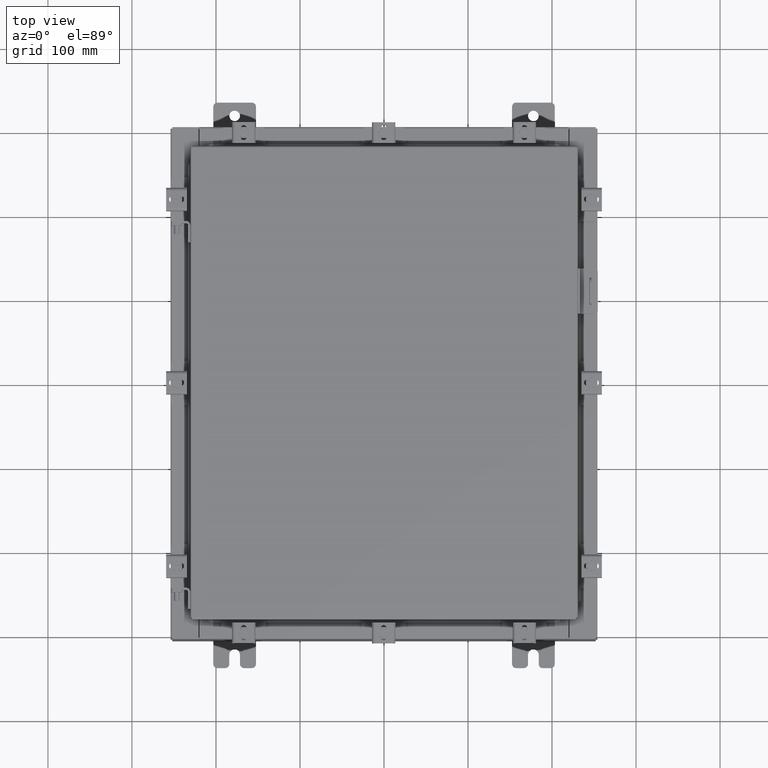
[diagram: clean part render]
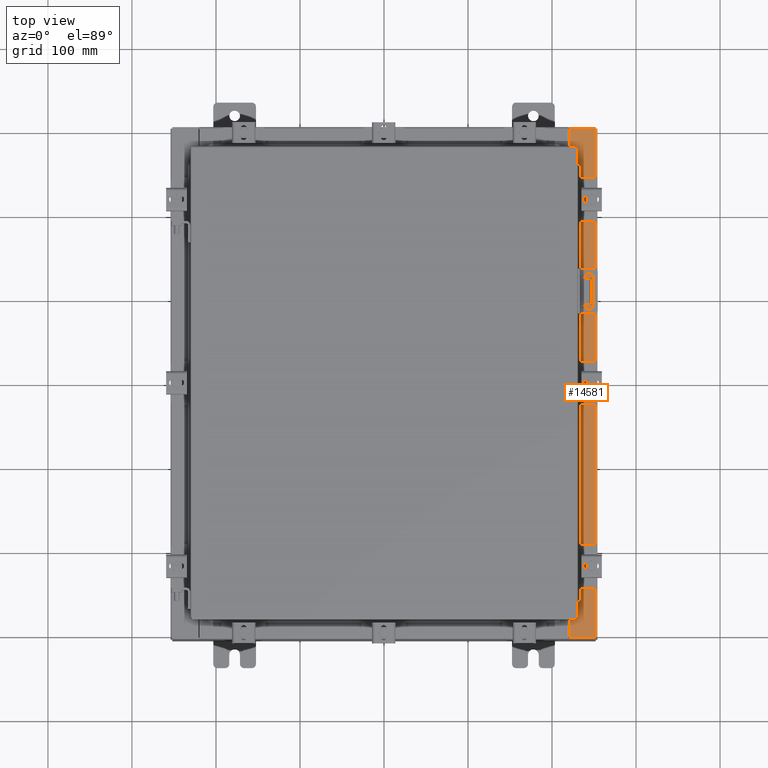
[diagram: same view with one face highlighted and labeled with its STEP entity id]
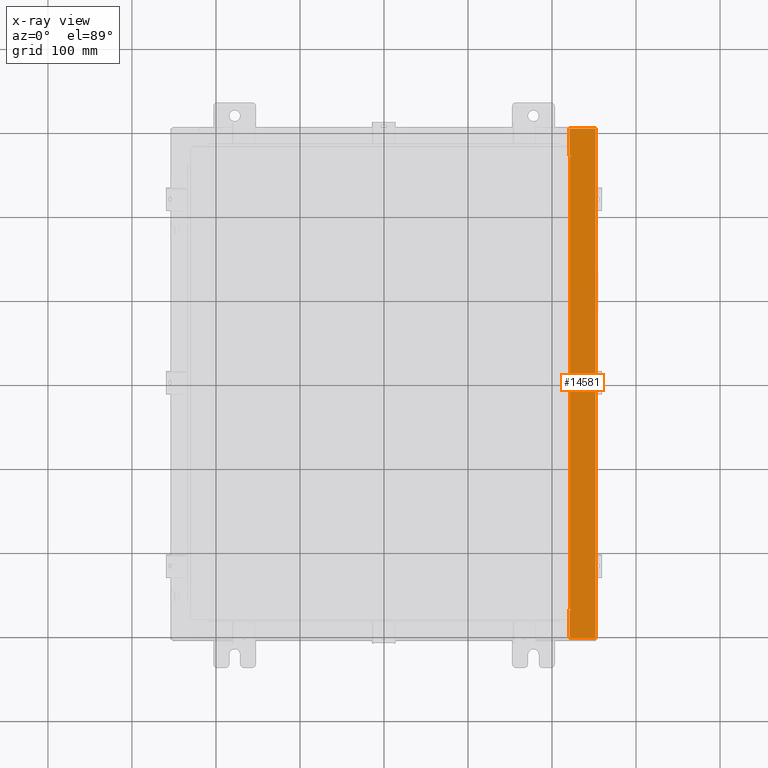
[diagram: x-ray of the same camera — body ghosted, the highlighted face saturated]
A machine part, top view. The second image highlights one B-rep face of the part: STEP entity #14581.
The next image is the same camera in x-ray: the body ghosted, the highlighted face saturated — about 0% of this face is hidden behind the body in this view.
In plain terms, the highlighted planar face has unit normal (-0, 0, -1).
Its self-contained STEP definition (entity closure, byte-faithful):
#157 = CIRCLE ( 'NONE', #7042, 0.01867499999999949400 ) ;
#236 = LINE ( 'NONE', #1037, #3823 ) ;
#282 = CARTESIAN_POINT ( 'NONE',  ( 4.252457061909005100E-014, 11.92529999999999800, 5.925300000000072800 ) ) ;
#311 = VERTEX_POINT ( 'NONE', #16488 ) ;
#781 = FACE_OUTER_BOUND ( 'NONE', #21377, .T. ) ;
#1037 = CARTESIAN_POINT ( 'NONE',  ( 9.912300000000019700, -11.92530000000000000, 5.925300000000001800 ) ) ;
#1585 = VERTEX_POINT ( 'NONE', #8141 ) ;
#2098 = VERTEX_POINT ( 'NONE', #3680 ) ;
#2334 = VERTEX_POINT ( 'NONE', #11837 ) ;
#2384 = CARTESIAN_POINT ( 'NONE',  ( 9.912300000000019700, 11.92529999999999800, 5.925300000000001800 ) ) ;
#2727 = VERTEX_POINT ( 'NONE', #7184 ) ;
#2816 = VECTOR ( 'NONE', #22108, 39.37007874015748100 ) ;
#3224 = ORIENTED_EDGE ( 'NONE', *, *, #19918, .F. ) ;
#3461 = CARTESIAN_POINT ( 'NONE',  ( 8.750050000000021200, -10.59374999999999800, 5.925300000000009800 ) ) ;
#3507 = ORIENTED_EDGE ( 'NONE', *, *, #12525, .T. ) ;
#3680 = CARTESIAN_POINT ( 'NONE',  ( 8.712700000000021200, -10.59374999999999800, 5.925300000000011600 ) ) ;
#3820 = DIRECTION ( 'NONE',  ( 1.000000000000000000, 0.0000000000000000000, 0.0000000000000000000 ) ) ;
#3823 = VECTOR ( 'NONE', #6316, 39.37007874015748100 ) ;
#3893 = ORIENTED_EDGE ( 'NONE', *, *, #11992, .F. ) ;
#3916 = DIRECTION ( 'NONE',  ( 0.0000000000000000000, -1.000000000000000000, 0.0000000000000000000 ) ) ;
#4081 = ORIENTED_EDGE ( 'NONE', *, *, #6845, .F. ) ;
#4229 = CARTESIAN_POINT ( 'NONE',  ( 8.712700000000021200, -10.59375000000000000, 5.925300000000011600 ) ) ;
#4326 = VECTOR ( 'NONE', #3820, 39.37007874015748100 ) ;
#4405 = DIRECTION ( 'NONE',  ( 7.132762385546378400E-015, 0.0000000000000000000, 1.000000000000000000 ) ) ;
#4989 = ORIENTED_EDGE ( 'NONE', *, *, #13177, .T. ) ;
#4998 = DIRECTION ( 'NONE',  ( -1.000000000000000000, 0.0000000000000000000, 0.0000000000000000000 ) ) ;
#5600 = DIRECTION ( 'NONE',  ( -1.000000000000000000, 0.0000000000000000000, 7.132762385546378400E-015 ) ) ;
#5685 = CARTESIAN_POINT ( 'NONE',  ( 8.712700000000021200, 10.59374999999999600, 5.925300000000011600 ) ) ;
#5700 = DIRECTION ( 'NONE',  ( -7.132762385546378400E-015, 0.0000000000000000000, -1.000000000000000000 ) ) ;
#5774 = VECTOR ( 'NONE', #14041, 39.37007874015748100 ) ;
#5916 = ORIENTED_EDGE ( 'NONE', *, *, #10601, .F. ) ;
#6316 = DIRECTION ( 'NONE',  ( -0.0000000000000000000, -1.000000000000000000, -0.0000000000000000000 ) ) ;
#6507 = DIRECTION ( 'NONE',  ( 0.0000000000000000000, -1.000000000000000000, 0.0000000000000000000 ) ) ;
#6675 = CARTESIAN_POINT ( 'NONE',  ( 8.750050000000021200, 10.63109999999999500, 5.925300000000011600 ) ) ;
#6733 = CARTESIAN_POINT ( 'NONE',  ( 8.750050000000021200, 10.59374999999999600, 5.925300000000009800 ) ) ;
#6836 = VECTOR ( 'NONE', #10172, 39.37007874015748100 ) ;
#6845 = EDGE_CURVE ( 'NONE', #2098, #21232, #7450, .T. ) ;
#7042 = AXIS2_PLACEMENT_3D ( 'NONE', #17703, #7365, #19504 ) ;
#7184 = CARTESIAN_POINT ( 'NONE',  ( 9.912300000000019700, -11.92530000000000000, 5.925300000000001800 ) ) ;
#7365 = DIRECTION ( 'NONE',  ( 7.132762385546378400E-015, 0.0000000000000000000, 1.000000000000000000 ) ) ;
#7450 = LINE ( 'NONE', #4229, #2816 ) ;
#7984 = VECTOR ( 'NONE', #5600, 39.37007874015748100 ) ;
#8141 = CARTESIAN_POINT ( 'NONE',  ( 8.750050000000021200, -10.63109999999999600, 5.925300000000009800 ) ) ;
#8504 = ORIENTED_EDGE ( 'NONE', *, *, #8621, .F. ) ;
#8606 = ORIENTED_EDGE ( 'NONE', *, *, #17804, .F. ) ;
#8621 = EDGE_CURVE ( 'NONE', #20126, #2098, #20697, .T. ) ;
#9073 = CARTESIAN_POINT ( 'NONE',  ( 8.712700000000021200, 10.59374999999999600, 5.925300000000011600 ) ) ;
#9109 = ORIENTED_EDGE ( 'NONE', *, *, #12562, .T. ) ;
#9220 = VERTEX_POINT ( 'NONE', #19772 ) ;
#9290 = VECTOR ( 'NONE', #4998, 39.37007874015748100 ) ;
#10015 = AXIS2_PLACEMENT_3D ( 'NONE', #14764, #4405, #16474 ) ;
#10160 = CARTESIAN_POINT ( 'NONE',  ( 8.750050000000021200, -10.59374999999999800, 5.925300000000011600 ) ) ;
#10172 = DIRECTION ( 'NONE',  ( -1.000000000000000000, 4.340572780399910900E-014, -2.170286390199955400E-014 ) ) ;
#10601 = EDGE_CURVE ( 'NONE', #21232, #14387, #18120, .T. ) ;
#11606 = ORIENTED_EDGE ( 'NONE', *, *, #16062, .F. ) ;
#11837 = CARTESIAN_POINT ( 'NONE',  ( 8.699700000000019500, -10.63109999999999600, 5.925300000000009800 ) ) ;
#11992 = EDGE_CURVE ( 'NONE', #14387, #22068, #157, .T. ) ;
#12008 = LINE ( 'NONE', #282, #7984 ) ;
#12292 = CARTESIAN_POINT ( 'NONE',  ( 4.252457061909005100E-014, -11.92530000000000000, 5.925300000000072800 ) ) ;
#12525 = EDGE_CURVE ( 'NONE', #21307, #20570, #12008, .T. ) ;
#12562 = EDGE_CURVE ( 'NONE', #2334, #9220, #19646, .T. ) ;
#13177 = EDGE_CURVE ( 'NONE', #9220, #2727, #19626, .T. ) ;
#13283 = LINE ( 'NONE', #18463, #16220 ) ;
#13714 = EDGE_CURVE ( 'NONE', #22068, #311, #16008, .T. ) ;
#14041 = DIRECTION ( 'NONE',  ( 1.000000000000000000, 0.0000000000000000000, -7.132762385546378400E-015 ) ) ;
#14284 = EDGE_CURVE ( 'NONE', #20570, #311, #14939, .T. ) ;
#14387 = VERTEX_POINT ( 'NONE', #6733 ) ;
#14581 = ADVANCED_FACE ( 'NONE', ( #781 ), #20999, .F. ) ;
#14594 = CARTESIAN_POINT ( 'NONE',  ( 8.699700000000019500, 11.92529999999999600, 5.925300000000009800 ) ) ;
#14764 = CARTESIAN_POINT ( 'NONE',  ( 8.750050000000021200, -10.61242499999999800, 5.925300000000011600 ) ) ;
#14939 = LINE ( 'NONE', #18605, #20136 ) ;
#14999 = VECTOR ( 'NONE', #3916, 39.37007874015748100 ) ;
#15938 = ORIENTED_EDGE ( 'NONE', *, *, #14284, .T. ) ;
#16008 = LINE ( 'NONE', #6675, #6836 ) ;
#16030 = CARTESIAN_POINT ( 'NONE',  ( 4.252457061909005100E-014, 0.0000000000000000000, 5.925300000000072800 ) ) ;
#16062 = EDGE_CURVE ( 'NONE', #21307, #2727, #236, .T. ) ;
#16220 = VECTOR ( 'NONE', #16700, 39.37007874015748100 ) ;
#16474 = DIRECTION ( 'NONE',  ( 1.000000000000000000, 0.0000000000000000000, 0.0000000000000000000 ) ) ;
#16488 = CARTESIAN_POINT ( 'NONE',  ( 8.699700000000019500, 10.63109999999999600, 5.925300000000009800 ) ) ;
#16700 = DIRECTION ( 'NONE',  ( 1.000000000000000000, 0.0000000000000000000, 2.170286390199955400E-014 ) ) ;
#17703 = CARTESIAN_POINT ( 'NONE',  ( 8.750050000000021200, 10.61242499999999500, 5.925300000000011600 ) ) ;
#17785 = DIRECTION ( 'NONE',  ( -1.000000000000000000, 0.0000000000000000000, 7.132762385546378400E-015 ) ) ;
#17804 = EDGE_CURVE ( 'NONE', #1585, #20126, #20072, .T. ) ;
#17904 = CARTESIAN_POINT ( 'NONE',  ( 8.750050000000021200, 10.63109999999999500, 5.925300000000009800 ) ) ;
#18120 = LINE ( 'NONE', #9073, #4326 ) ;
#18463 = CARTESIAN_POINT ( 'NONE',  ( 8.699700000000019500, -10.63109999999999600, 5.925300000000009800 ) ) ;
#18605 = CARTESIAN_POINT ( 'NONE',  ( 8.699700000000019500, 0.0000000000000000000, 5.925300000000009800 ) ) ;
#19504 = DIRECTION ( 'NONE',  ( 1.000000000000000000, 0.0000000000000000000, 0.0000000000000000000 ) ) ;
#19562 = CARTESIAN_POINT ( 'NONE',  ( 8.699700000000019500, 0.0000000000000000000, 5.925300000000009800 ) ) ;
#19626 = LINE ( 'NONE', #12292, #5774 ) ;
#19646 = LINE ( 'NONE', #19562, #14999 ) ;
#19772 = CARTESIAN_POINT ( 'NONE',  ( 8.699700000000019500, -11.92530000000000000, 5.925300000000009800 ) ) ;
#19918 = EDGE_CURVE ( 'NONE', #2334, #1585, #13283, .T. ) ;
#20072 = CIRCLE ( 'NONE', #10015, 0.01867499999999949400 ) ;
#20126 = VERTEX_POINT ( 'NONE', #3461 ) ;
#20136 = VECTOR ( 'NONE', #6507, 39.37007874015748100 ) ;
#20570 = VERTEX_POINT ( 'NONE', #14594 ) ;
#20593 = AXIS2_PLACEMENT_3D ( 'NONE', #16030, #5700, #17785 ) ;
#20697 = LINE ( 'NONE', #10160, #9290 ) ;
#20999 = PLANE ( 'NONE',  #20593 ) ;
#21232 = VERTEX_POINT ( 'NONE', #5685 ) ;
#21307 = VERTEX_POINT ( 'NONE', #2384 ) ;
#21314 = ORIENTED_EDGE ( 'NONE', *, *, #13714, .F. ) ;
#21377 = EDGE_LOOP ( 'NONE', ( #3224, #9109, #4989, #11606, #3507, #15938, #21314, #3893, #5916, #4081, #8504, #8606 ) ) ;
#22068 = VERTEX_POINT ( 'NONE', #17904 ) ;
#22108 = DIRECTION ( 'NONE',  ( -0.0000000000000000000, 1.000000000000000000, -0.0000000000000000000 ) ) ;